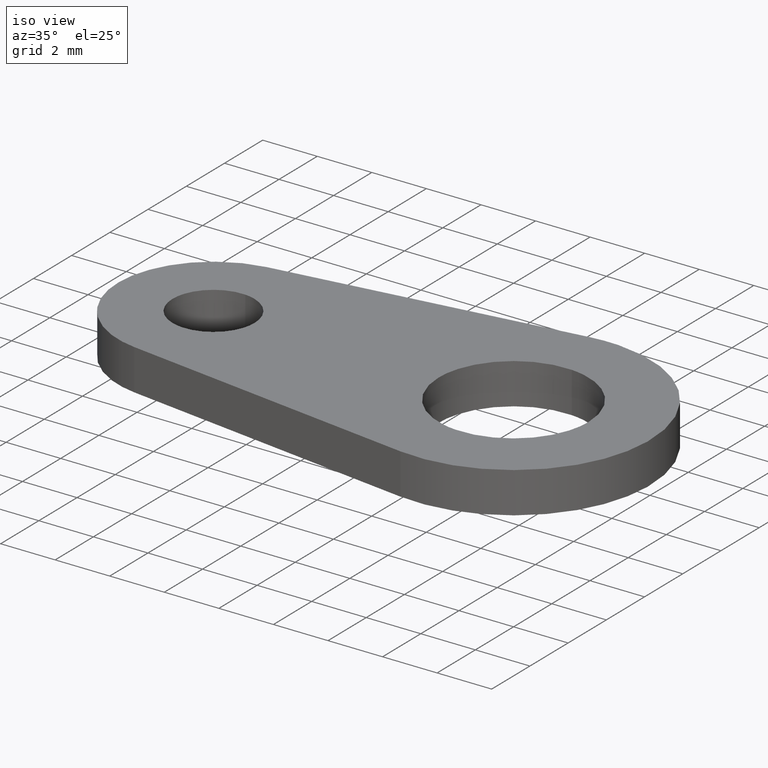
[diagram: clean part render]
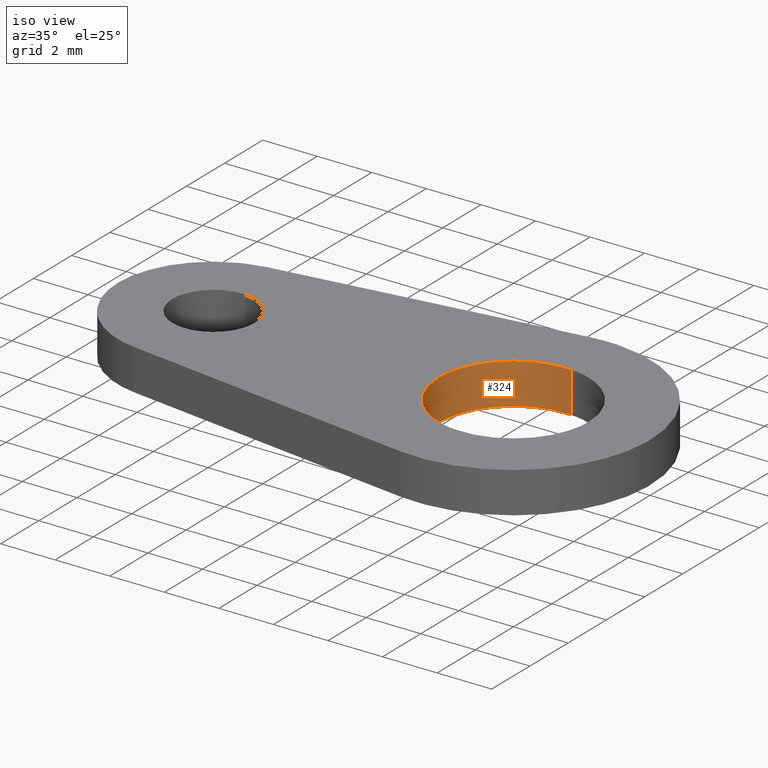
[diagram: same view with one face highlighted and labeled with its STEP entity id]
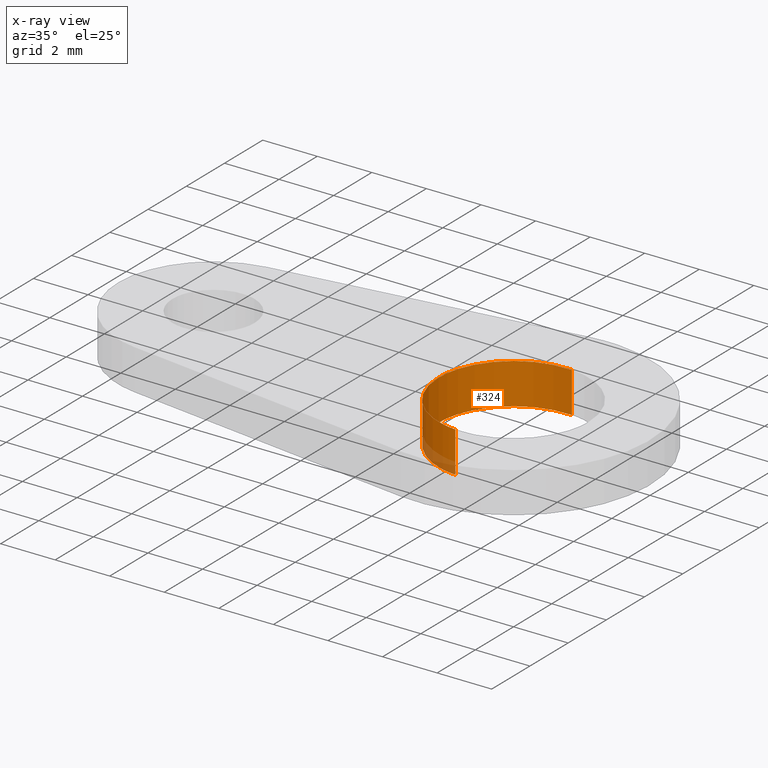
[diagram: x-ray of the same camera — body ghosted, the highlighted face saturated]
A machine part, iso view. The second image highlights one B-rep face of the part: STEP entity #324.
The next image is the same camera in x-ray: the body ghosted, the highlighted face saturated — about 5% of this face is hidden behind the body in this view.
In plain terms, the highlighted face is a freeform B-spline surface patch.
Its self-contained STEP definition (entity closure, byte-faithful):
#226=CARTESIAN_POINT('',(10.784237486748420,-2.741522667766101,1.537500000000057));
#227=CARTESIAN_POINT('',(8.042714818982322,-2.525760154514525,1.537500000000057));
#228=CARTESIAN_POINT('',(8.258477332233898,0.215762513251575,1.537500000000057));
#229=CARTESIAN_POINT('',(8.474239845485474,2.957285181017677,1.537500000000057));
#230=CARTESIAN_POINT('',(11.215762513251580,2.741522667766101,1.537500000000057));
#231=CARTESIAN_POINT('',(10.784237486748420,-2.741522667766101,-0.038437500000001));
#232=CARTESIAN_POINT('',(8.042714818982322,-2.525760154514525,-0.038437500000001));
#233=CARTESIAN_POINT('',(8.258477332233898,0.215762513251575,-0.038437500000001));
#234=CARTESIAN_POINT('',(8.474239845485474,2.957285181017677,-0.038437500000001));
#235=CARTESIAN_POINT('',(11.215762513251580,2.741522667766101,-0.038437500000001));
#243=(BOUNDED_SURFACE()B_SPLINE_SURFACE(2,1,((#226,#231),(#227,#232),(#228,#233),(#229,#234),(#230,#235)),.UNSPECIFIED.,.F.,.F.,.U.)B_SPLINE_SURFACE_WITH_KNOTS((3,2,3),(2,2),(0.0,4.556349186104044,9.112698372208088),(0.0,1.0),.UNSPECIFIED.)GEOMETRIC_REPRESENTATION_ITEM()RATIONAL_B_SPLINE_SURFACE(((1.0,1.0),(0.707106781186548,0.707106781186548),(1.0,1.0),(0.707106781186548,0.707106781186548),(1.0,1.0)))REPRESENTATION_ITEM('')SURFACE());
#244=CARTESIAN_POINT('',(8.250000000000000,0.0,0.0));
#245=VERTEX_POINT('',#244);
#246=CARTESIAN_POINT('',(10.784237486729440,-2.741522667764607,8.673617E-017));
#247=VERTEX_POINT('',#246);
#248=CARTESIAN_POINT('',(8.250000000000000,0.0,0.0));
#249=CARTESIAN_POINT('',(8.250000000000000,-2.542073852024749,0.0));
#250=CARTESIAN_POINT('',(10.784237486729442,-2.741522667764607,8.673617E-017));
#258=(BOUNDED_CURVE()B_SPLINE_CURVE(2,(#248,#249,#250),.UNSPECIFIED.,.F.,.U.)B_SPLINE_CURVE_WITH_KNOTS((3,3),(0.0,0.236331300630392),.UNSPECIFIED.)CURVE()GEOMETRIC_REPRESENTATION_ITEM()RATIONAL_B_SPLINE_CURVE((1.0,0.723120658607979,0.969723356166860))REPRESENTATION_ITEM(''));
#259=EDGE_CURVE('',#245,#247,#258,.T.);
#260=ORIENTED_EDGE('',*,*,#259,.F.);
#261=CARTESIAN_POINT('',(11.215762513270560,2.741522667764607,-8.673617E-017));
#262=VERTEX_POINT('',#261);
#263=CARTESIAN_POINT('',(11.215762513270558,2.741522667764607,-8.673617E-017));
#264=CARTESIAN_POINT('',(11.108047794290172,2.750000000000000,0.0));
#265=CARTESIAN_POINT('',(11.0,2.750000000000000,0.0));
#266=CARTESIAN_POINT('',(8.250000000000000,2.750000000000000,0.0));
#267=CARTESIAN_POINT('',(8.250000000000000,0.0,0.0));
#275=(BOUNDED_CURVE()B_SPLINE_CURVE(2,(#263,#264,#265,#266,#267),.UNSPECIFIED.,.F.,.U.)B_SPLINE_CURVE_WITH_KNOTS((3,2,3),(0.736331300630392,0.750000000000000,1.0),.UNSPECIFIED.)CURVE()GEOMETRIC_REPRESENTATION_ITEM()RATIONAL_B_SPLINE_CURVE((0.969723356166860,0.983986122578569,1.0,0.707106781186548,1.0))REPRESENTATION_ITEM(''));
#276=EDGE_CURVE('',#262,#245,#275,.T.);
#277=ORIENTED_EDGE('',*,*,#276,.F.);
#278=CARTESIAN_POINT('',(11.215762513270560,2.741522667764607,1.500000000000055));
#279=VERTEX_POINT('',#278);
#280=CARTESIAN_POINT('',(11.215762513270560,2.741522667764607,1.500000000000055));
#281=CARTESIAN_POINT('',(11.215762513270560,2.741522667764607,-8.673617E-017));
#282=QUASI_UNIFORM_CURVE('',1,(#280,#281),.UNSPECIFIED.,.F.,.U.);
#283=EDGE_CURVE('',#279,#262,#282,.T.);
#284=ORIENTED_EDGE('',*,*,#283,.F.);
#285=CARTESIAN_POINT('',(8.250000000000000,0.0,1.500000000000055));
#286=VERTEX_POINT('',#285);
#287=CARTESIAN_POINT('',(11.215762513270564,2.741522667764607,1.500000000000056));
#288=CARTESIAN_POINT('',(11.108047794290171,2.750000000000000,1.500000000000056));
#289=CARTESIAN_POINT('',(11.0,2.750000000000000,1.500000000000055));
#290=CARTESIAN_POINT('',(8.250000000000000,2.750000000000000,1.500000000000055));
#291=CARTESIAN_POINT('',(8.250000000000000,0.0,1.500000000000055));
#299=(BOUNDED_CURVE()B_SPLINE_CURVE(2,(#287,#288,#289,#290,#291),.UNSPECIFIED.,.F.,.U.)B_SPLINE_CURVE_WITH_KNOTS((3,2,3),(0.736331300630392,0.750000000000000,1.0),.UNSPECIFIED.)CURVE()GEOMETRIC_REPRESENTATION_ITEM()RATIONAL_B_SPLINE_CURVE((0.969723356166860,0.983986122578569,1.0,0.707106781186548,1.0))REPRESENTATION_ITEM(''));
#300=EDGE_CURVE('',#279,#286,#299,.T.);
#301=ORIENTED_EDGE('',*,*,#300,.T.);
#302=CARTESIAN_POINT('',(10.784237486729440,-2.741522667764607,1.500000000000055));
#303=VERTEX_POINT('',#302);
#304=CARTESIAN_POINT('',(8.250000000000000,0.0,1.500000000000055));
#305=CARTESIAN_POINT('',(8.250000000000000,-2.542073852024749,1.500000000000055));
#306=CARTESIAN_POINT('',(10.784237486729442,-2.741522667764607,1.500000000000056));
#314=(BOUNDED_CURVE()B_SPLINE_CURVE(2,(#304,#305,#306),.UNSPECIFIED.,.F.,.U.)B_SPLINE_CURVE_WITH_KNOTS((3,3),(0.0,0.236331300630392),.UNSPECIFIED.)CURVE()GEOMETRIC_REPRESENTATION_ITEM()RATIONAL_B_SPLINE_CURVE((1.0,0.723120658607979,0.969723356166860))REPRESENTATION_ITEM(''));
#315=EDGE_CURVE('',#286,#303,#314,.T.);
#316=ORIENTED_EDGE('',*,*,#315,.T.);
#317=CARTESIAN_POINT('',(10.784237486729440,-2.741522667764607,1.500000000000055));
#318=CARTESIAN_POINT('',(10.784237486729440,-2.741522667764607,8.673617E-017));
#319=QUASI_UNIFORM_CURVE('',1,(#317,#318),.UNSPECIFIED.,.F.,.U.);
#320=EDGE_CURVE('',#303,#247,#319,.T.);
#321=ORIENTED_EDGE('',*,*,#320,.T.);
#322=EDGE_LOOP('',(#260,#277,#284,#301,#316,#321));
#323=FACE_OUTER_BOUND('',#322,.T.);
#324=ADVANCED_FACE('',(#323),#243,.F.);